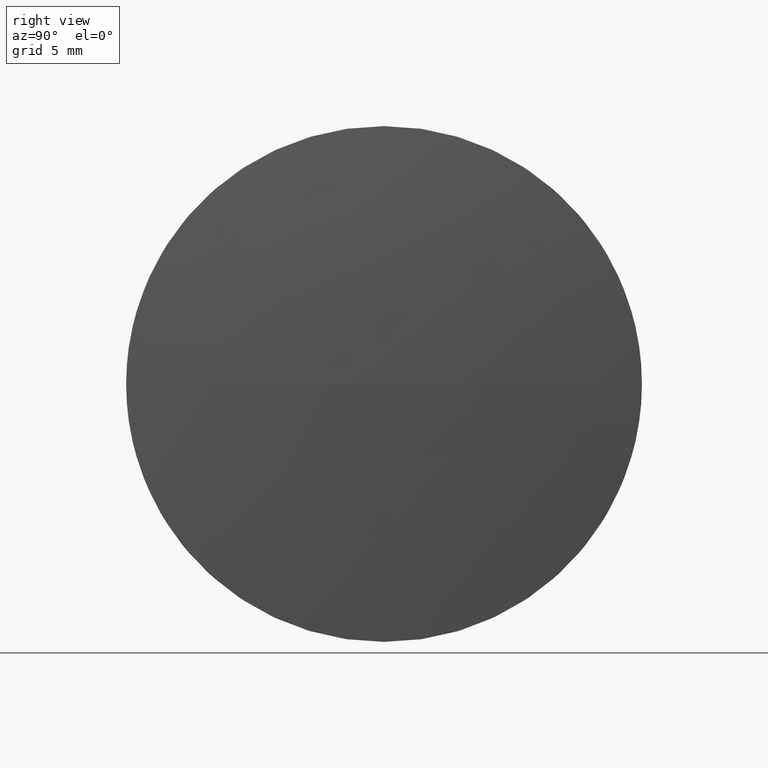
[diagram: clean part render]
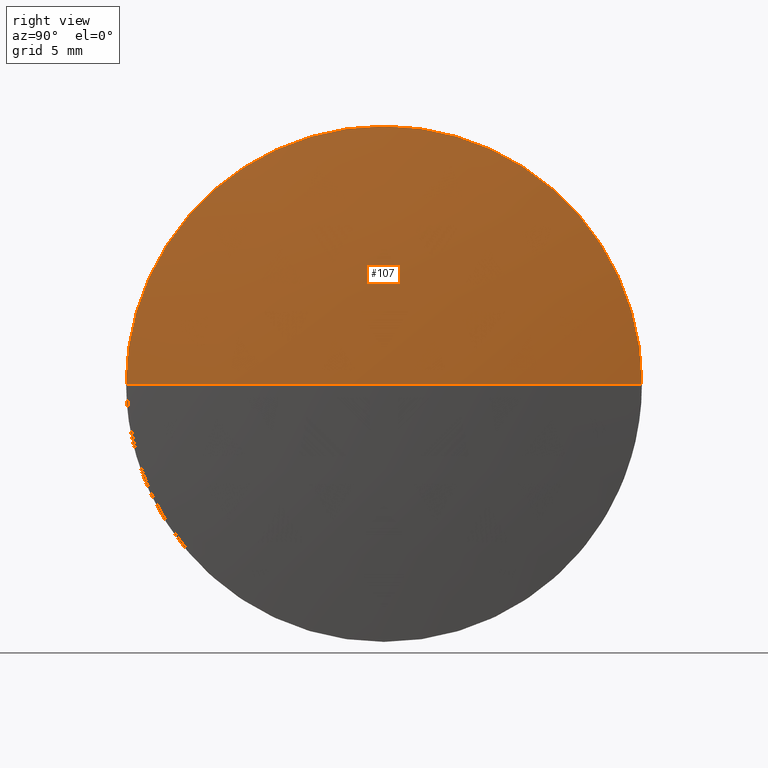
[diagram: same view with one face highlighted and labeled with its STEP entity id]
A machine part, right view. The second image highlights one B-rep face of the part: STEP entity #107.
In plain terms, the highlighted spherical surface has radius 128.379 mm.
Its self-contained STEP definition (entity closure, byte-faithful):
#7 = CARTESIAN_POINT ( 'NONE',  ( 269.2950118344210800, 95.20191544312194800, 0.0000000000000000000 ) ) ;
#20 = VERTEX_POINT ( 'NONE', #36 ) ;
#23 = DIRECTION ( 'NONE',  ( 0.0000000000000000000, 0.0000000000000000000, 1.000000000000000000 ) ) ;
#26 = ORIENTED_EDGE ( 'NONE', *, *, #102, .F. ) ;
#27 = CARTESIAN_POINT ( 'NONE',  ( 397.0637823262245500, 95.20191544312206100, 0.0000000000000000000 ) ) ;
#29 = AXIS2_PLACEMENT_3D ( 'NONE', #7, #135, #133 ) ;
#32 = DIRECTION ( 'NONE',  ( 0.0000000000000000000, 1.000000000000000000, 0.0000000000000000000 ) ) ;
#34 = CARTESIAN_POINT ( 'NONE',  ( 397.0637823262245500, 82.70191544312200400, -1.530808498934184800E-015 ) ) ;
#36 = CARTESIAN_POINT ( 'NONE',  ( 397.0637823262245500, 107.7019154431220200, 0.0000000000000000000 ) ) ;
#40 = CIRCLE ( 'NONE', #59, 12.49999999999999600 ) ;
#47 = CIRCLE ( 'NONE', #113, 128.3787704918035200 ) ;
#48 = DIRECTION ( 'NONE',  ( 0.0000000000000000000, 1.000000000000000000, 1.224646799147353200E-016 ) ) ;
#54 = VERTEX_POINT ( 'NONE', #34 ) ;
#59 = AXIS2_PLACEMENT_3D ( 'NONE', #99, #176, #23 ) ;
#74 = CARTESIAN_POINT ( 'NONE',  ( 397.0637823262245500, 95.20191544312206100, 12.49999999999999600 ) ) ;
#78 = DIRECTION ( 'NONE',  ( -1.000000000000000000, -0.0000000000000000000, -0.0000000000000000000 ) ) ;
#89 = ORIENTED_EDGE ( 'NONE', *, *, #110, .F. ) ;
#97 = DIRECTION ( 'NONE',  ( 0.0000000000000000000, 1.224646799147353200E-016, -1.000000000000000000 ) ) ;
#99 = CARTESIAN_POINT ( 'NONE',  ( 397.0637823262245500, 95.20191544312206100, 0.0000000000000000000 ) ) ;
#102 = EDGE_CURVE ( 'NONE', #137, #54, #47, .T. ) ;
#103 = CIRCLE ( 'NONE', #136, 12.49999999999999600 ) ;
#107 = ADVANCED_FACE ( 'NONE', ( #156 ), #154, .T. ) ;
#110 = EDGE_CURVE ( 'NONE', #54, #122, #40, .T. ) ;
#112 = CARTESIAN_POINT ( 'NONE',  ( 269.2950118344210800, 95.20191544312194800, 0.0000000000000000000 ) ) ;
#113 = AXIS2_PLACEMENT_3D ( 'NONE', #112, #97, #48 ) ;
#122 = VERTEX_POINT ( 'NONE', #74 ) ;
#133 = DIRECTION ( 'NONE',  ( 1.000000000000000000, 0.0000000000000000000, 0.0000000000000000000 ) ) ;
#135 = DIRECTION ( 'NONE',  ( -0.0000000000000000000, 0.0000000000000000000, 1.000000000000000000 ) ) ;
#136 = AXIS2_PLACEMENT_3D ( 'NONE', #27, #78, #179 ) ;
#137 = VERTEX_POINT ( 'NONE', #181 ) ;
#152 = CIRCLE ( 'NONE', #29, 128.3787704918035200 ) ;
#154 = SPHERICAL_SURFACE ( 'NONE', #182, 128.3787704918035200 ) ;
#155 = EDGE_LOOP ( 'NONE', ( #26, #165, #161, #89 ) ) ;
#156 = FACE_OUTER_BOUND ( 'NONE', #155, .T. ) ;
#159 = DIRECTION ( 'NONE',  ( -0.0000000000000000000, 0.0000000000000000000, -1.000000000000000000 ) ) ;
#160 = CARTESIAN_POINT ( 'NONE',  ( 269.2950118344210800, 95.20191544312194800, 0.0000000000000000000 ) ) ;
#161 = ORIENTED_EDGE ( 'NONE', *, *, #164, .F. ) ;
#164 = EDGE_CURVE ( 'NONE', #122, #20, #103, .T. ) ;
#165 = ORIENTED_EDGE ( 'NONE', *, *, #173, .T. ) ;
#173 = EDGE_CURVE ( 'NONE', #137, #20, #152, .T. ) ;
#176 = DIRECTION ( 'NONE',  ( -1.000000000000000000, -0.0000000000000000000, -0.0000000000000000000 ) ) ;
#179 = DIRECTION ( 'NONE',  ( 0.0000000000000000000, 0.0000000000000000000, 1.000000000000000000 ) ) ;
#181 = CARTESIAN_POINT ( 'NONE',  ( 397.6737823262245700, 95.20191544312196200, 0.0000000000000000000 ) ) ;
#182 = AXIS2_PLACEMENT_3D ( 'NONE', #160, #159, #32 ) ;